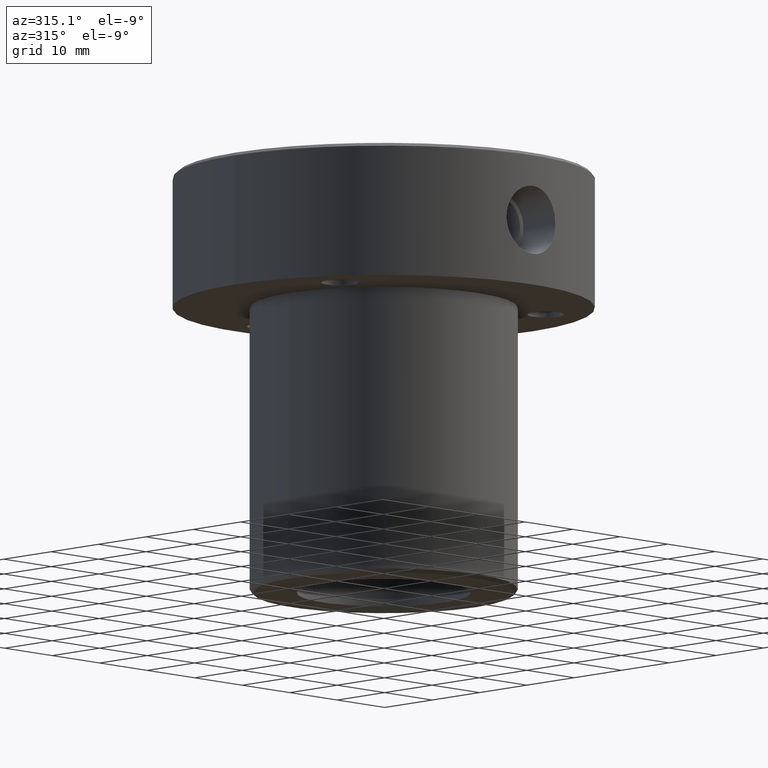
[diagram: clean part render]
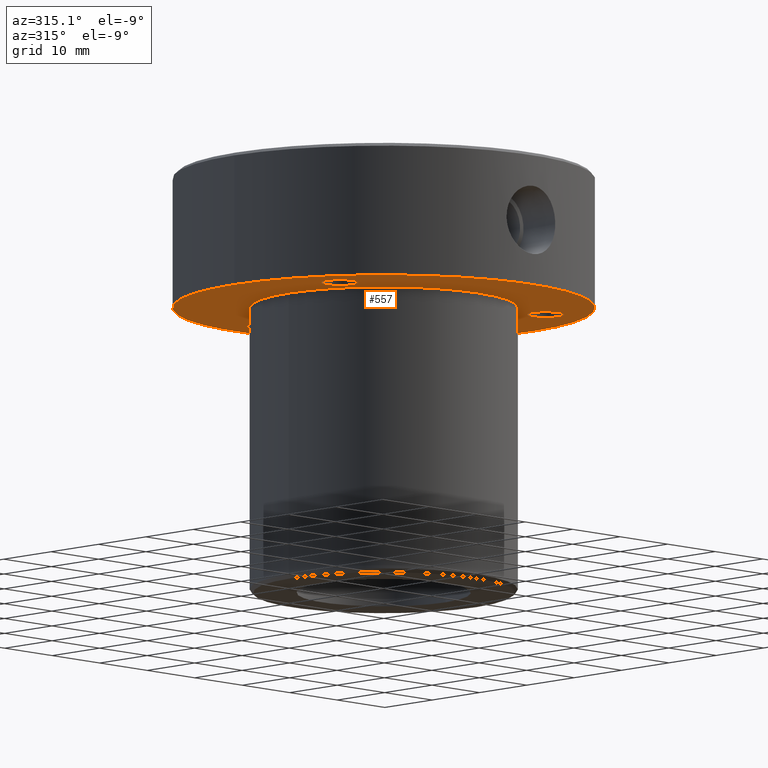
[diagram: same view with one face highlighted and labeled with its STEP entity id]
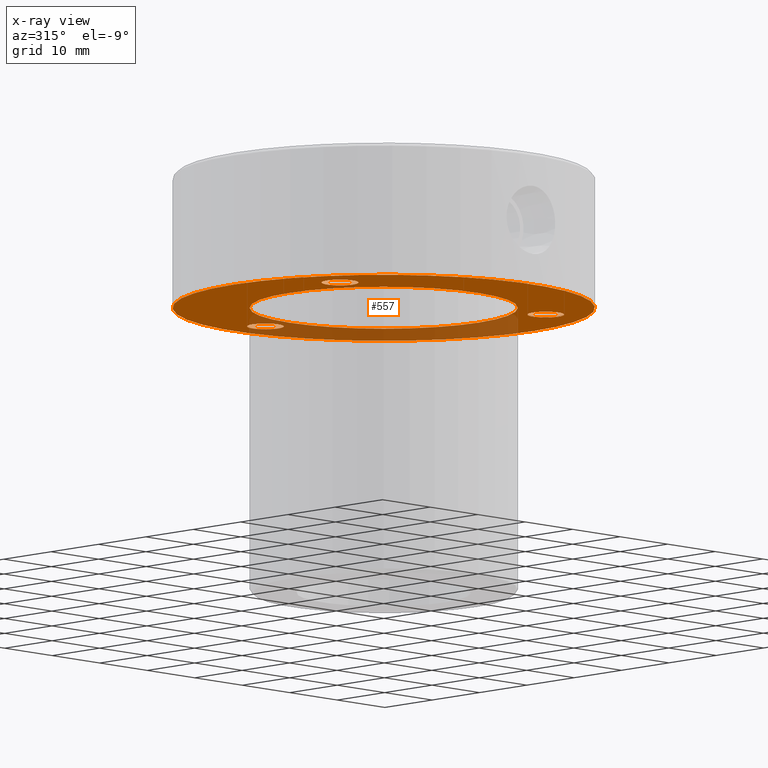
[diagram: x-ray of the same camera — body ghosted, the highlighted face saturated]
A machine part, auxiliary view. The second image highlights one B-rep face of the part: STEP entity #557.
The next image is the same camera in x-ray: the body ghosted, the highlighted face saturated — about 29% of this face is hidden behind the body in this view.
In plain terms, the highlighted planar face has unit normal (0, 0, -1).
Its self-contained STEP definition (entity closure, byte-faithful):
#4 = CARTESIAN_POINT ( 'NONE',  ( 20.00000000000000000, 0.000000000000000000, -20.00000000000000000 ) ) ;
#14 = ORIENTED_EDGE ( 'NONE', *, *, #1246, .F. ) ;
#37 = FACE_BOUND ( 'NONE', #124, .T. ) ;
#46 = VERTEX_POINT ( 'NONE', #846 ) ;
#51 = CARTESIAN_POINT ( 'NONE',  ( -21.65063509461100111, -12.49999999999995381, -20.00000000000000000 ) ) ;
#73 = DIRECTION ( 'NONE',  ( 1.000000000000000000, 0.000000000000000000, 0.000000000000000000 ) ) ;
#88 = AXIS2_PLACEMENT_3D ( 'NONE', #1048, #766, #184 ) ;
#107 = ORIENTED_EDGE ( 'NONE', *, *, #221, .F. ) ;
#118 = EDGE_LOOP ( 'NONE', ( #1171, #619 ) ) ;
#124 = EDGE_LOOP ( 'NONE', ( #107, #1140 ) ) ;
#137 = VERTEX_POINT ( 'NONE', #429 ) ;
#146 = FACE_BOUND ( 'NONE', #580, .T. ) ;
#147 = VERTEX_POINT ( 'NONE', #1247 ) ;
#180 = ORIENTED_EDGE ( 'NONE', *, *, #519, .T. ) ;
#184 = DIRECTION ( 'NONE',  ( 1.000000000000000000, 0.000000000000000000, 0.000000000000000000 ) ) ;
#186 = EDGE_CURVE ( 'NONE', #552, #634, #626, .T. ) ;
#187 = CARTESIAN_POINT ( 'NONE',  ( -2.749999999999995559, 25.00000000000001066, -20.00000000000000000 ) ) ;
#192 = CARTESIAN_POINT ( 'NONE',  ( -20.00000000000000000, 2.449293598294706513E-15, -20.00000000000000000 ) ) ;
#208 = AXIS2_PLACEMENT_3D ( 'NONE', #51, #662, #1060 ) ;
#211 = CARTESIAN_POINT ( 'NONE',  ( 21.65063509461091940, -12.50000000000010125, -20.00000000000000000 ) ) ;
#221 = EDGE_CURVE ( 'NONE', #288, #627, #745, .T. ) ;
#225 = CIRCLE ( 'NONE', #674, 2.749999999999995559 ) ;
#234 = EDGE_CURVE ( 'NONE', #46, #137, #262, .T. ) ;
#238 = CARTESIAN_POINT ( 'NONE',  ( -24.40063509461099756, -12.49999999999995381, -20.00000000000000000 ) ) ;
#245 = DIRECTION ( 'NONE',  ( -1.000000000000000000, 0.000000000000000000, -0.000000000000000000 ) ) ;
#246 = ORIENTED_EDGE ( 'NONE', *, *, #186, .F. ) ;
#253 = CARTESIAN_POINT ( 'NONE',  ( 0.000000000000000000, 31.50000000000000000, -20.00000000000000000 ) ) ;
#261 = AXIS2_PLACEMENT_3D ( 'NONE', #374, #680, #968 ) ;
#262 = CIRCLE ( 'NONE', #484, 2.749999999999995559 ) ;
#263 = VERTEX_POINT ( 'NONE', #4 ) ;
#288 = VERTEX_POINT ( 'NONE', #295 ) ;
#295 = CARTESIAN_POINT ( 'NONE',  ( -18.90063509461100466, -12.49999999999995381, -20.00000000000000000 ) ) ;
#334 = FACE_OUTER_BOUND ( 'NONE', #1225, .T. ) ;
#349 = CARTESIAN_POINT ( 'NONE',  ( 31.50000000000000000, 0.000000000000000000, -20.00000000000000000 ) ) ;
#373 = DIRECTION ( 'NONE',  ( 0.000000000000000000, 0.000000000000000000, -1.000000000000000000 ) ) ;
#374 = CARTESIAN_POINT ( 'NONE',  ( -21.65063509461100111, -12.49999999999995381, -20.00000000000000000 ) ) ;
#379 = AXIS2_PLACEMENT_3D ( 'NONE', #1257, #848, #1243 ) ;
#390 = DIRECTION ( 'NONE',  ( 0.000000000000000000, 0.000000000000000000, -1.000000000000000000 ) ) ;
#410 = FACE_BOUND ( 'NONE', #118, .T. ) ;
#417 = CIRCLE ( 'NONE', #261, 2.749999999999995559 ) ;
#429 = CARTESIAN_POINT ( 'NONE',  ( 18.90063509461092295, -12.50000000000010125, -20.00000000000000000 ) ) ;
#455 = EDGE_CURVE ( 'NONE', #786, #263, #1132, .T. ) ;
#481 = AXIS2_PLACEMENT_3D ( 'NONE', #542, #922, #738 ) ;
#484 = AXIS2_PLACEMENT_3D ( 'NONE', #813, #1123, #728 ) ;
#519 = EDGE_CURVE ( 'NONE', #263, #786, #707, .T. ) ;
#522 = AXIS2_PLACEMENT_3D ( 'NONE', #253, #1228, #245 ) ;
#535 = ORIENTED_EDGE ( 'NONE', *, *, #455, .T. ) ;
#538 = CARTESIAN_POINT ( 'NONE',  ( 0.000000000000000000, 0.000000000000000000, -20.00000000000000000 ) ) ;
#542 = CARTESIAN_POINT ( 'NONE',  ( 0.000000000000000000, 0.000000000000000000, -20.00000000000000000 ) ) ;
#552 = VERTEX_POINT ( 'NONE', #597 ) ;
#557 = ADVANCED_FACE ( 'NONE', ( #37, #617, #410, #146, #334 ), #625, .T. ) ;
#580 = EDGE_LOOP ( 'NONE', ( #180, #535 ) ) ;
#597 = CARTESIAN_POINT ( 'NONE',  ( -31.50000000000000000, 3.857637417314162689E-15, -20.00000000000000000 ) ) ;
#609 = EDGE_LOOP ( 'NONE', ( #879, #14 ) ) ;
#617 = FACE_BOUND ( 'NONE', #609, .T. ) ;
#619 = ORIENTED_EDGE ( 'NONE', *, *, #748, .F. ) ;
#625 = PLANE ( 'NONE',  #522 ) ;
#626 = CIRCLE ( 'NONE', #88, 31.50000000000000000 ) ;
#627 = VERTEX_POINT ( 'NONE', #238 ) ;
#633 = EDGE_CURVE ( 'NONE', #634, #552, #1031, .T. ) ;
#634 = VERTEX_POINT ( 'NONE', #349 ) ;
#662 = DIRECTION ( 'NONE',  ( 0.000000000000000000, 0.000000000000000000, -1.000000000000000000 ) ) ;
#674 = AXIS2_PLACEMENT_3D ( 'NONE', #211, #390, #1178 ) ;
#675 = CARTESIAN_POINT ( 'NONE',  ( 0.000000000000000000, 0.000000000000000000, -20.00000000000000000 ) ) ;
#679 = DIRECTION ( 'NONE',  ( -1.000000000000000000, 0.000000000000000000, 0.000000000000000000 ) ) ;
#680 = DIRECTION ( 'NONE',  ( 0.000000000000000000, 0.000000000000000000, -1.000000000000000000 ) ) ;
#691 = CIRCLE ( 'NONE', #948, 2.749999999999995559 ) ;
#707 = CIRCLE ( 'NONE', #883, 20.00000000000000000 ) ;
#728 = DIRECTION ( 'NONE',  ( -1.000000000000000000, 0.000000000000000000, 0.000000000000000000 ) ) ;
#738 = DIRECTION ( 'NONE',  ( 1.000000000000000000, 0.000000000000000000, 0.000000000000000000 ) ) ;
#745 = CIRCLE ( 'NONE', #208, 2.749999999999995559 ) ;
#748 = EDGE_CURVE ( 'NONE', #1052, #147, #804, .T. ) ;
#766 = DIRECTION ( 'NONE',  ( -0.000000000000000000, -0.000000000000000000, 1.000000000000000000 ) ) ;
#772 = EDGE_CURVE ( 'NONE', #147, #1052, #691, .T. ) ;
#786 = VERTEX_POINT ( 'NONE', #192 ) ;
#804 = CIRCLE ( 'NONE', #379, 2.749999999999995559 ) ;
#813 = CARTESIAN_POINT ( 'NONE',  ( 21.65063509461091940, -12.50000000000010125, -20.00000000000000000 ) ) ;
#846 = CARTESIAN_POINT ( 'NONE',  ( 24.40063509461091229, -12.50000000000010125, -20.00000000000000000 ) ) ;
#848 = DIRECTION ( 'NONE',  ( 0.000000000000000000, 0.000000000000000000, -1.000000000000000000 ) ) ;
#879 = ORIENTED_EDGE ( 'NONE', *, *, #234, .F. ) ;
#883 = AXIS2_PLACEMENT_3D ( 'NONE', #675, #1070, #891 ) ;
#891 = DIRECTION ( 'NONE',  ( 1.000000000000000000, 0.000000000000000000, 0.000000000000000000 ) ) ;
#922 = DIRECTION ( 'NONE',  ( -0.000000000000000000, -0.000000000000000000, 1.000000000000000000 ) ) ;
#924 = ORIENTED_EDGE ( 'NONE', *, *, #633, .F. ) ;
#948 = AXIS2_PLACEMENT_3D ( 'NONE', #1249, #373, #679 ) ;
#968 = DIRECTION ( 'NONE',  ( -1.000000000000000000, 0.000000000000000000, 0.000000000000000000 ) ) ;
#1009 = AXIS2_PLACEMENT_3D ( 'NONE', #538, #1026, #73 ) ;
#1026 = DIRECTION ( 'NONE',  ( -0.000000000000000000, -0.000000000000000000, 1.000000000000000000 ) ) ;
#1031 = CIRCLE ( 'NONE', #481, 31.50000000000000000 ) ;
#1048 = CARTESIAN_POINT ( 'NONE',  ( 0.000000000000000000, 0.000000000000000000, -20.00000000000000000 ) ) ;
#1052 = VERTEX_POINT ( 'NONE', #187 ) ;
#1060 = DIRECTION ( 'NONE',  ( -1.000000000000000000, 0.000000000000000000, 0.000000000000000000 ) ) ;
#1070 = DIRECTION ( 'NONE',  ( -0.000000000000000000, -0.000000000000000000, 1.000000000000000000 ) ) ;
#1123 = DIRECTION ( 'NONE',  ( 0.000000000000000000, 0.000000000000000000, -1.000000000000000000 ) ) ;
#1127 = EDGE_CURVE ( 'NONE', #627, #288, #417, .T. ) ;
#1132 = CIRCLE ( 'NONE', #1009, 20.00000000000000000 ) ;
#1140 = ORIENTED_EDGE ( 'NONE', *, *, #1127, .F. ) ;
#1171 = ORIENTED_EDGE ( 'NONE', *, *, #772, .F. ) ;
#1178 = DIRECTION ( 'NONE',  ( -1.000000000000000000, 0.000000000000000000, 0.000000000000000000 ) ) ;
#1225 = EDGE_LOOP ( 'NONE', ( #924, #246 ) ) ;
#1228 = DIRECTION ( 'NONE',  ( 0.000000000000000000, 0.000000000000000000, -1.000000000000000000 ) ) ;
#1243 = DIRECTION ( 'NONE',  ( -1.000000000000000000, 0.000000000000000000, 0.000000000000000000 ) ) ;
#1246 = EDGE_CURVE ( 'NONE', #137, #46, #225, .T. ) ;
#1247 = CARTESIAN_POINT ( 'NONE',  ( 2.749999999999995559, 25.00000000000001066, -20.00000000000000000 ) ) ;
#1249 = CARTESIAN_POINT ( 'NONE',  ( 0.000000000000000000, 25.00000000000001066, -20.00000000000000000 ) ) ;
#1257 = CARTESIAN_POINT ( 'NONE',  ( 0.000000000000000000, 25.00000000000001066, -20.00000000000000000 ) ) ;